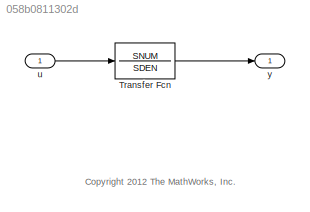
MODEL slx_058b0811302d
KIND model
BLOCK [TransferFcn] Transfer Fcn
  Denominator = SDEN
  Numerator = SNUM
BLOCK [Inport] u
  IconDisplay = Port number
BLOCK [Outport] y
  IconDisplay = Port number
ANNOTATION (root): <copyright redacted>
LINE Transfer Fcn:1 -> y:1
LINE u:1 -> Transfer Fcn:1
